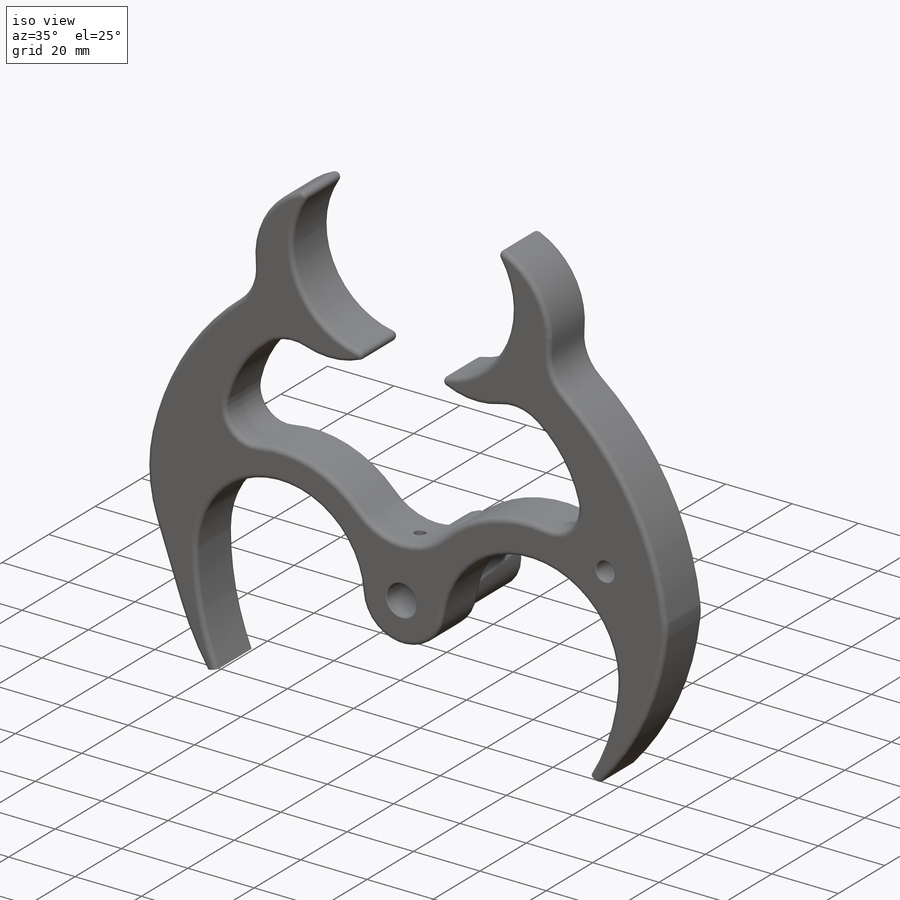
[diagram: iso view]
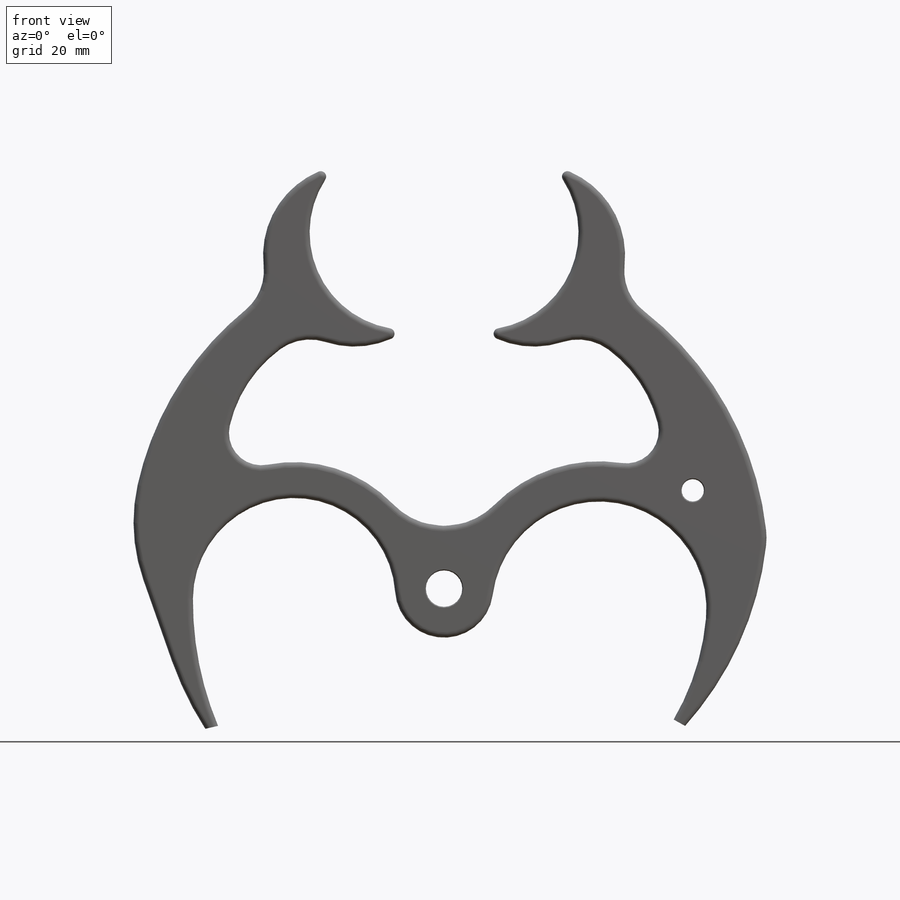
[diagram: front view]
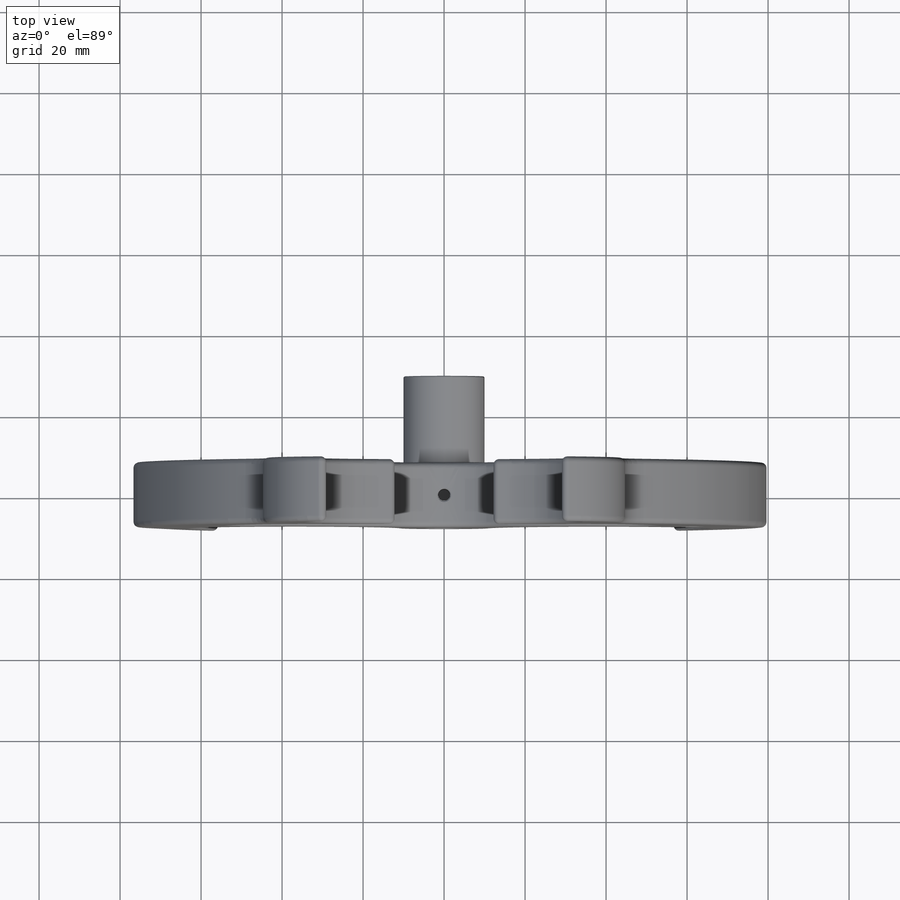
[diagram: top view]
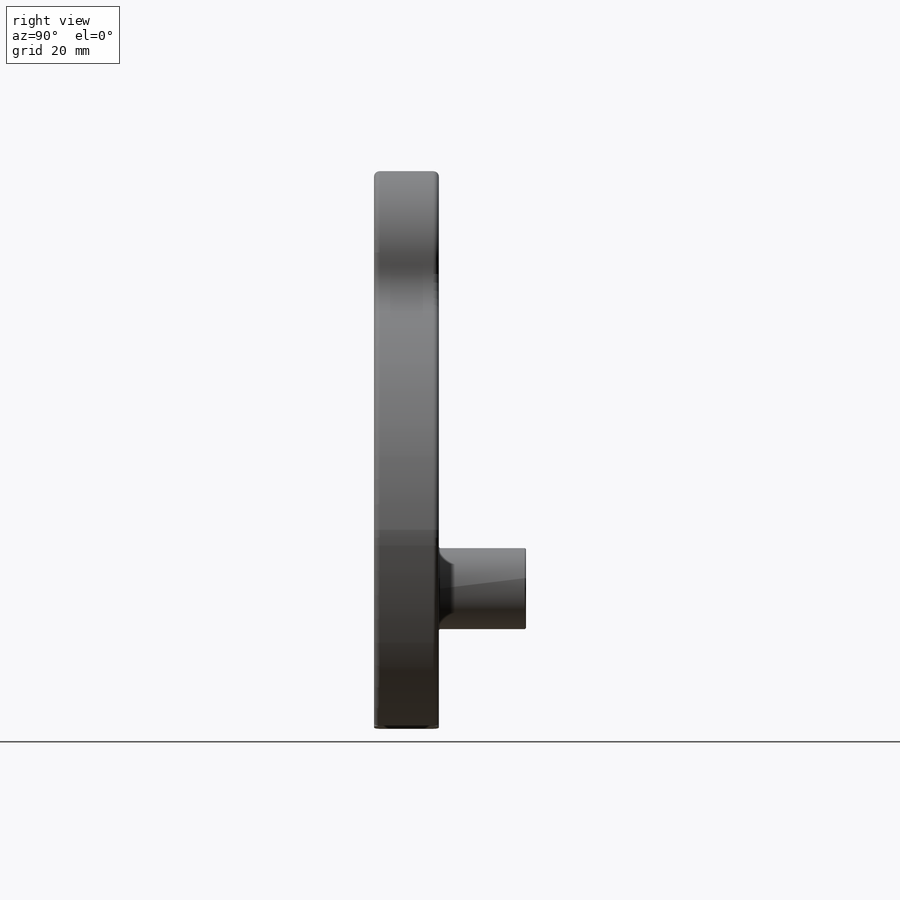
[diagram: right view]
SOLIDWORKS PART (.sldprt)
format: sldprt  version: not decoded by parser v0  size: 736,768 bytes
history: native  units: mm
features: sketch x4, plane x3, extrude x2, cut_extrude x2, chamfer x2, material x1, fillet x1 (+13 scaffold rows collapsed)
feature tree (28):
  scaffold x13  (default folders/planes/origin — collapsed)
  material  "Дуб"
  plane  "Спереди"
  plane  "Сверху"
  plane  "Справа"
  sketch  "Эскиз2"  dims[c1.D1=9.0mm c1.D2=24.2mm c1.D3=50.0mm c1.D5=53.0mm c1.D7=35.0mm c1.D9=16.0mm c1.D10=120.0mm c1.D16=~36.434775mm c1.D17=160.0mm c1.D18=35.0mm c1.D20=65.0mm c1.D22=25.0mm c1.D26=48.0mm c1.D28=45.0mm c1.D29=12.5mm c1.D30=155.0mm c1.D32=85.0mm c1.D4=2.125mm c2.D5=37.6mm c2.D6=24.5mm c3.D6=45.0deg c3.D4=22.375mm c4.D6=21.5mm c4.D8=33.0mm c4.D10=39.0mm c4.D11=45.0mm c4.D12=2.0mm c4.D13=32.32mm c4.D14=~83.902626mm c5.D14=~30.353482deg c6.D14=~83.902626mm c7.D14=29.1deg c7.D15=3.225mm c7.D19=12.58mm c7.D20=~5.574876mm c7.D21=32.9mm c7.D23=49.0mm c7.D24=9.2mm c7.D25=87.9mm c7.D27=82.25mm c7.D31=16.35mm c7.D33=~45.395603mm c8.D33=19.4deg c8.D34=3.0mm c8.D35=~121.039963mm c9.D35=13.0deg c9.D36=3.225mm]
  extrude  "Бобышка-Вытянуть1"  Depth=16mm
  fillet  "Скругление1"  Radius=1.35mm
  sketch  "Эскиз3"  dims[D1=5.5mm D2=24.265mm D3=61.4mm]
  cut_extrude  "Вырез-Вытянуть1"  Depth=16mm
  sketch  "Эскиз4"  dims[D1=20.0mm]
  extrude  "Бобышка-Вытянуть2"  Depth=21.5mm
  chamfer  "Фаска1"  Distance=0.25mm Angle=45deg
  sketch  "Эскиз5"  dims[D1=3.0mm]
  cut_extrude  "Вырез-Вытянуть2"  [1 undecoded]
  chamfer  "Фаска2"  Distance=0.25mm Angle=45deg
decode coverage: 10 of 11 modeling features carry decoded parameters
note: ~ marks probable driven/reference dimensions
note: 1 parameter value undecoded
note: suppression state not decoded; provenance and decode notes live in map.json
